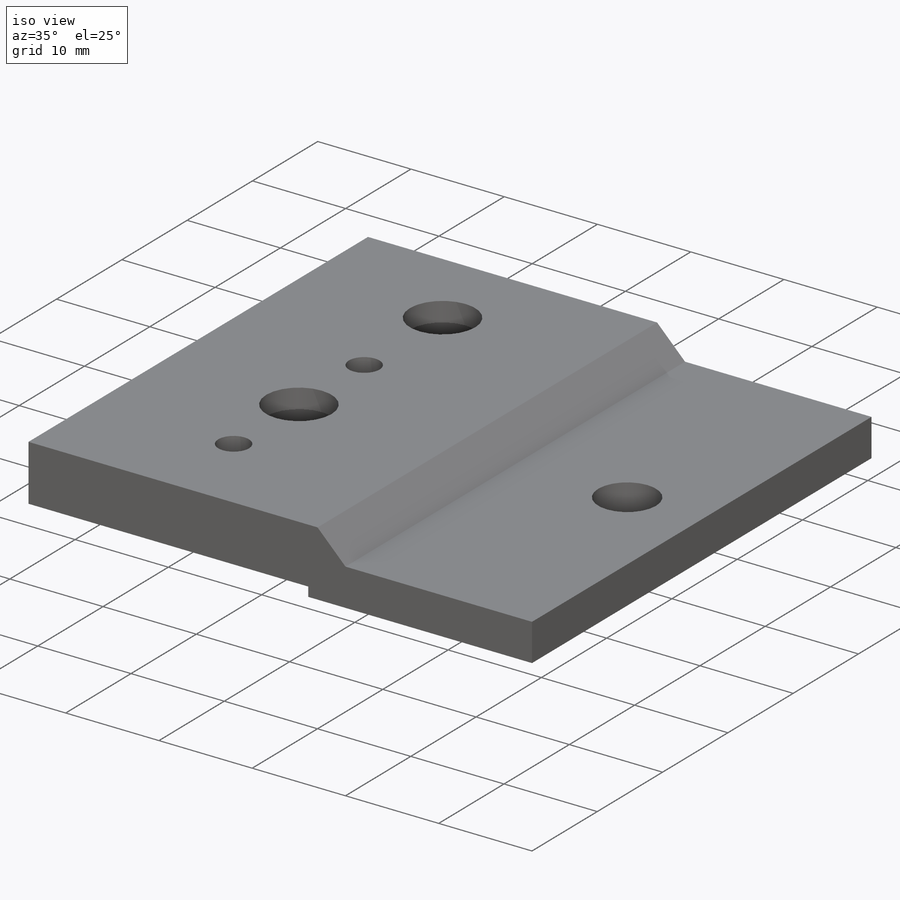
[diagram: iso view]
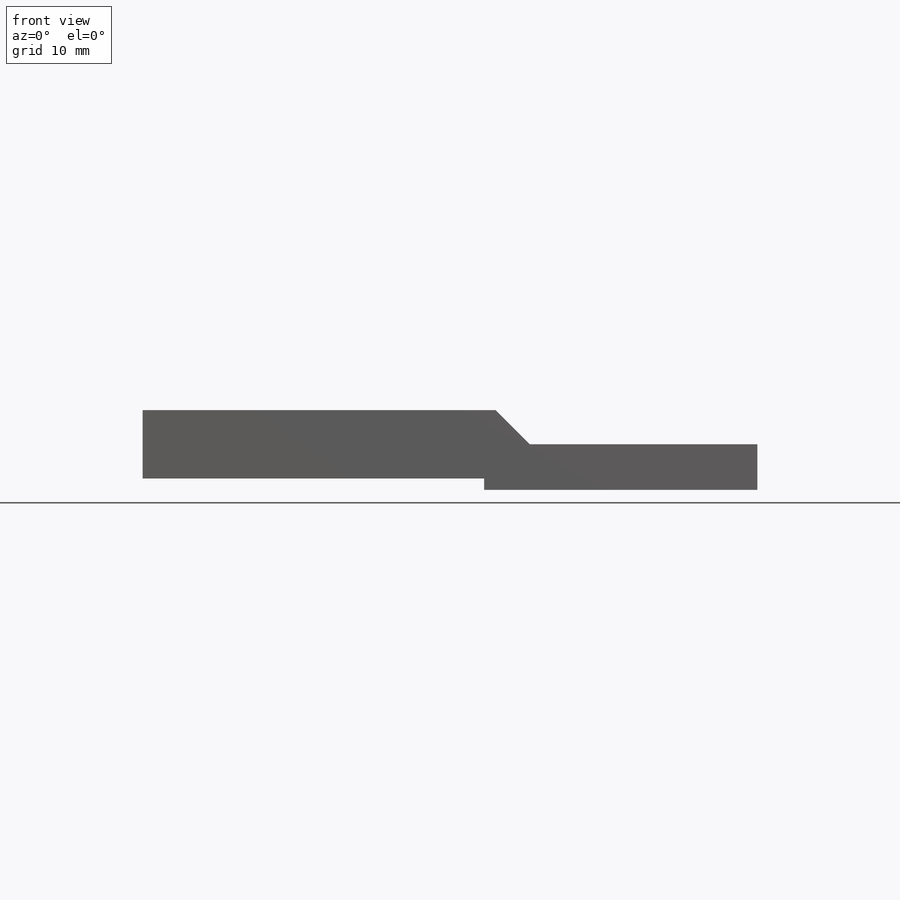
[diagram: front view]
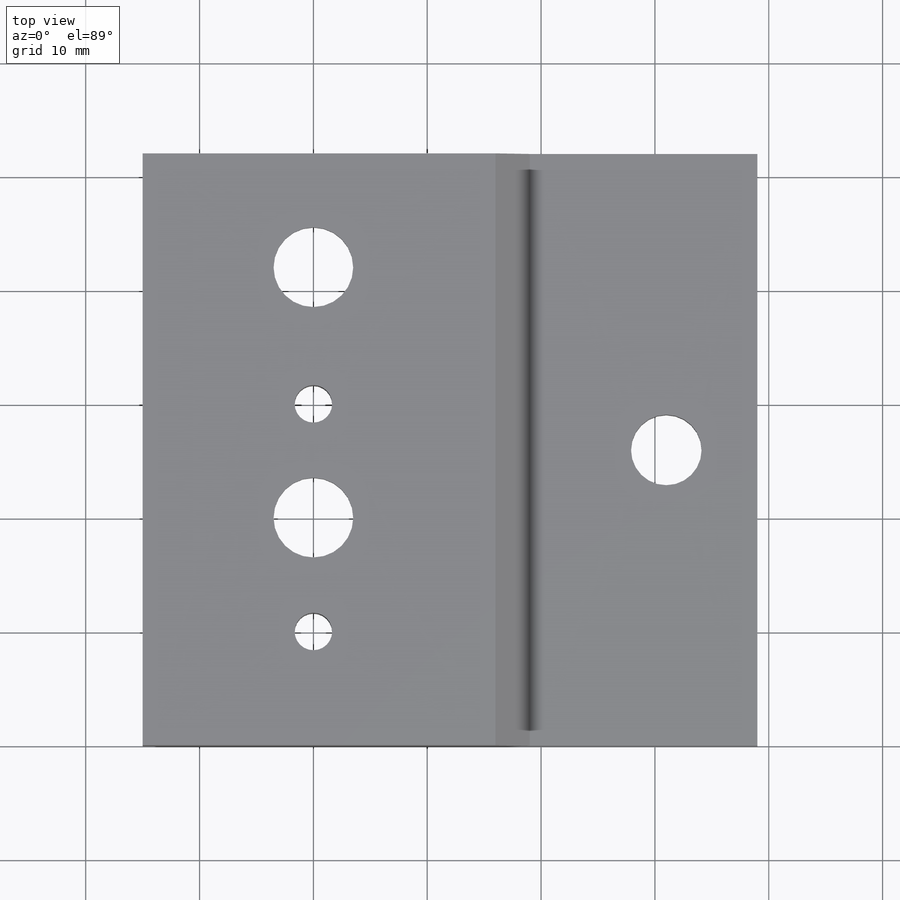
[diagram: top view]
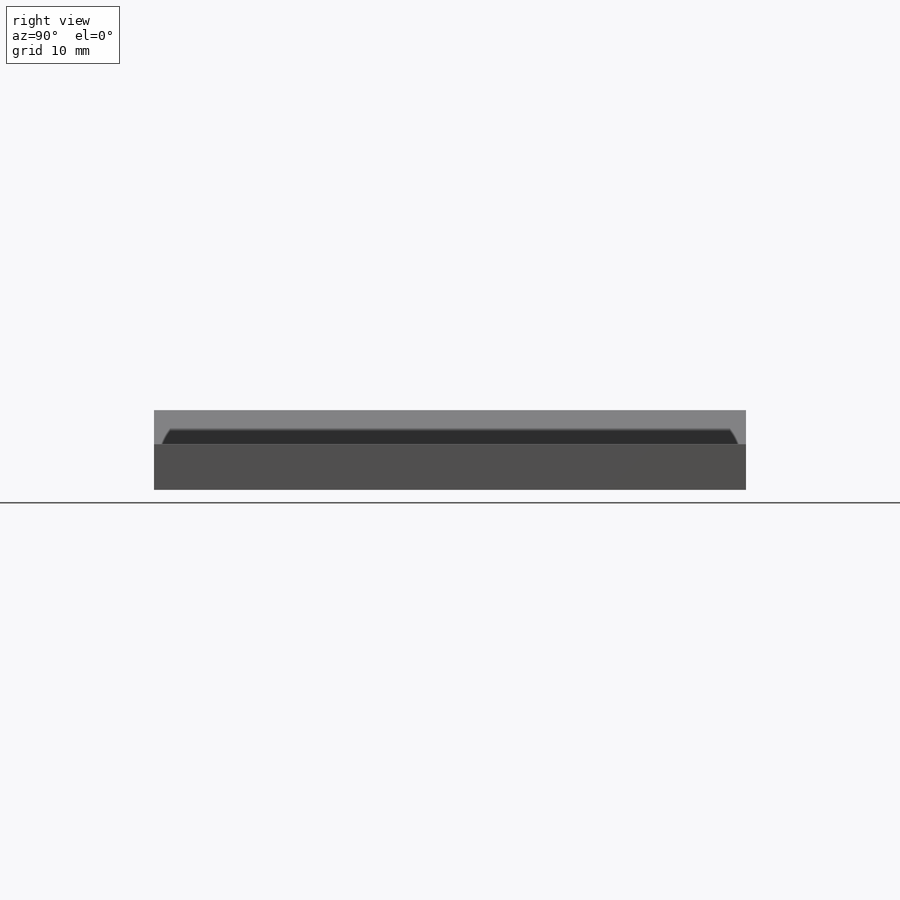
[diagram: right view]
SOLIDWORKS PART (.sldprt)
format: sldprt  version: not decoded by parser v0  size: 292,352 bytes
history: native  units: mm
features: sketch x8, hole x3, extrude x2, thread x2, material x1, pattern_linear x1, chamfer x1 (+16 scaffold rows collapsed)
feature tree (34):
  scaffold x16  (default folders/planes/origin — collapsed)
  material  "Material <not specified>"
  sketch  "Sketch1"  dims[D1=30.0mm D2=4.0mm D3=4.0mm D4=6.0mm D5=1.0mm D6=20.0mm]
  extrude  "Extrude1"  Depth=40mm
  hole  "M4 Tapped Hole1"  Diameter=3.3mm Depth=6mm
  sketch  "Sketch3"  dims[D1=20.0mm D2=10.0mm]
  sketch  "Sketch2"  dims[hole-wizard template sketch: 60 standard entries collapsed; hole parameters kept: c18.Thru Tap Drill Depth=6.0mm]
  thread  "Hole Thread1"  Diameter=4mm  [1 undecoded]
  thread  "Hole Thread2"  Diameter=4mm  [1 undecoded]
  hole  "CBORE for M6 Cheese Head Screw1"  Diameter=7mm Depth=6mm
  sketch  "Sketch11"  dims[D1=10.0mm D2=~10.000001mm]
  sketch  "Sketch10"  dims[hole-wizard template sketch: 41 standard entries collapsed; hole parameters kept: c12.Thru Hole Dia.=7.0mm c12.Thru Hole Depth=6.0mm c12.C'Bore Dia.=11.0mm c12.C'Bore Depth=3.9mm]
  sketch  "Sketch13"  dims[D1=0.0mm]
  extrude  "Extrude3"  Depth=12mm
  pattern_linear  "LPattern1"  Count1=2 Count2=1 Spacing1=22mm Spacing2=10mm
  chamfer  "Chamfer1"  Distance=3mm Angle=45deg
  hole  "Ø6.2 (6.2) Diameter Hole1"  Diameter=6.2mm Depth=4mm
  sketch  "3DSketch3"  dims[D1=8.0mm D2=52.0mm]
  sketch  "Sketch15"  dims[hole-wizard template sketch: 59 standard entries collapsed; hole parameters kept: c18.Thru Hole Dia.=6.2mm c18.Thru Hole Depth=4.0mm]
decode coverage: 17 of 17 modeling features carry decoded parameters
note: ~ marks probable driven/reference dimensions
note: 2 parameter values undecoded
note: suppression state not decoded; provenance and decode notes live in map.json
